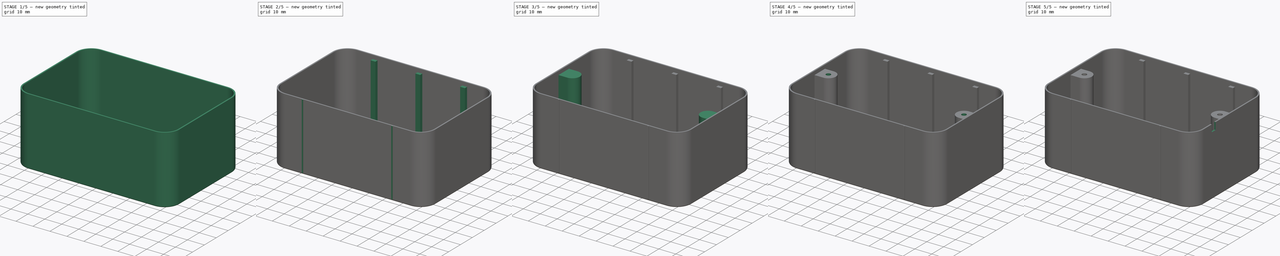
[diagram: build sequence overview — one tinted view per stage of 5, left to right]
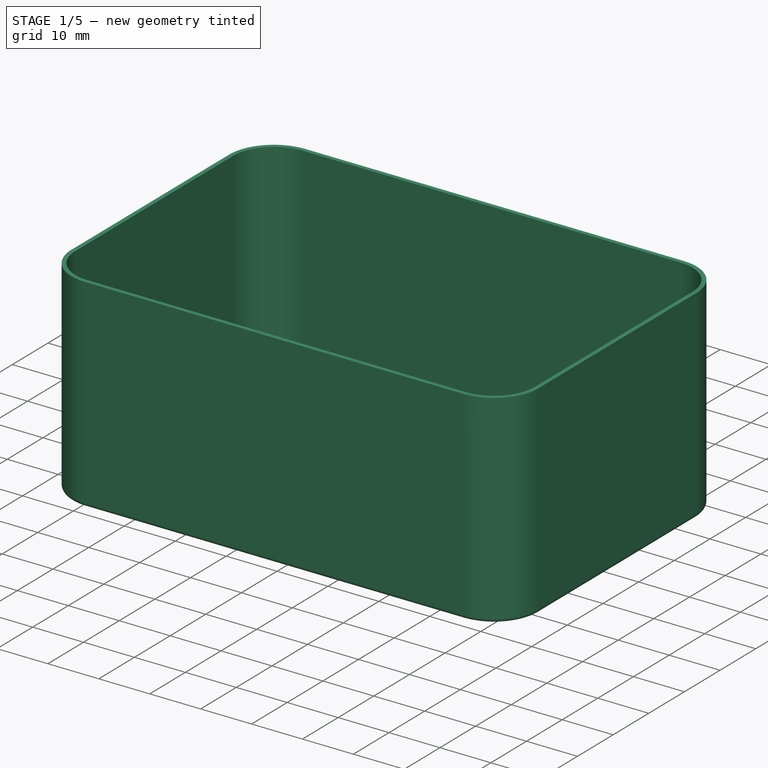
[diagram: stage 1 of 5 — iso view after this stage's code; geometry added in this stage tinted green]
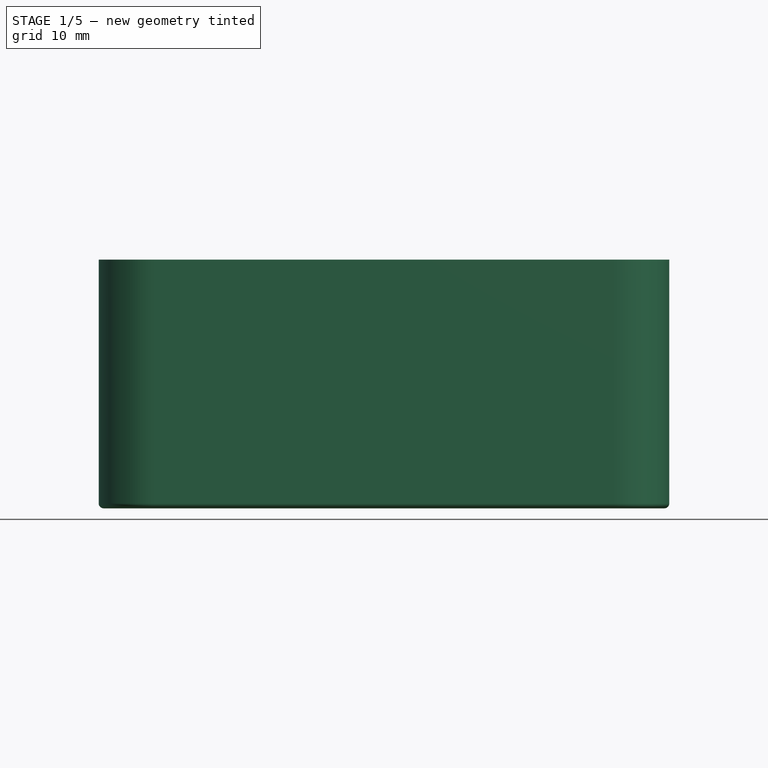
[diagram: stage 1 of 5 — front view after this stage's code; geometry added in this stage tinted green]
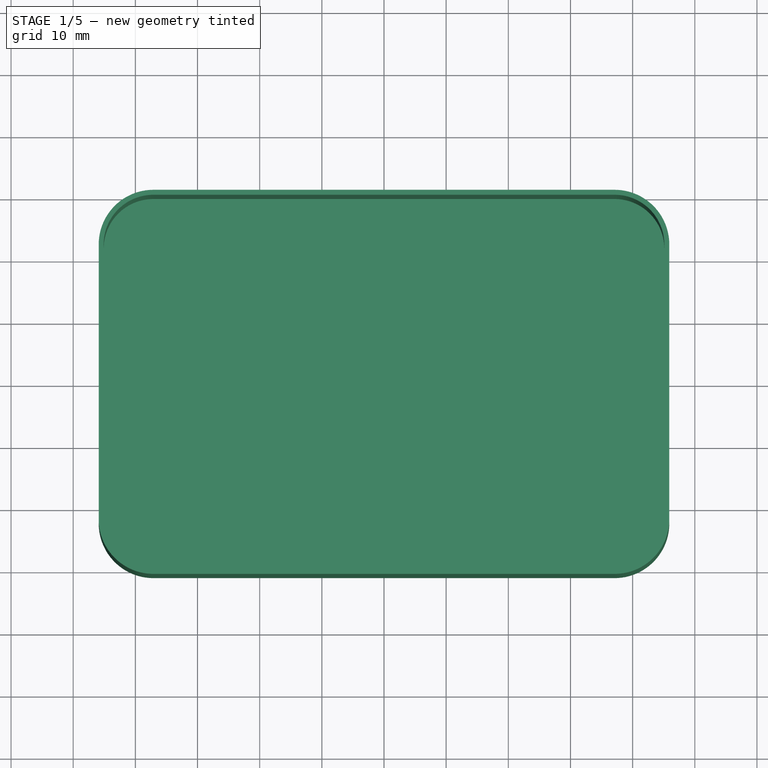
[diagram: stage 1 of 5 — top view after this stage's code; geometry added in this stage tinted green]
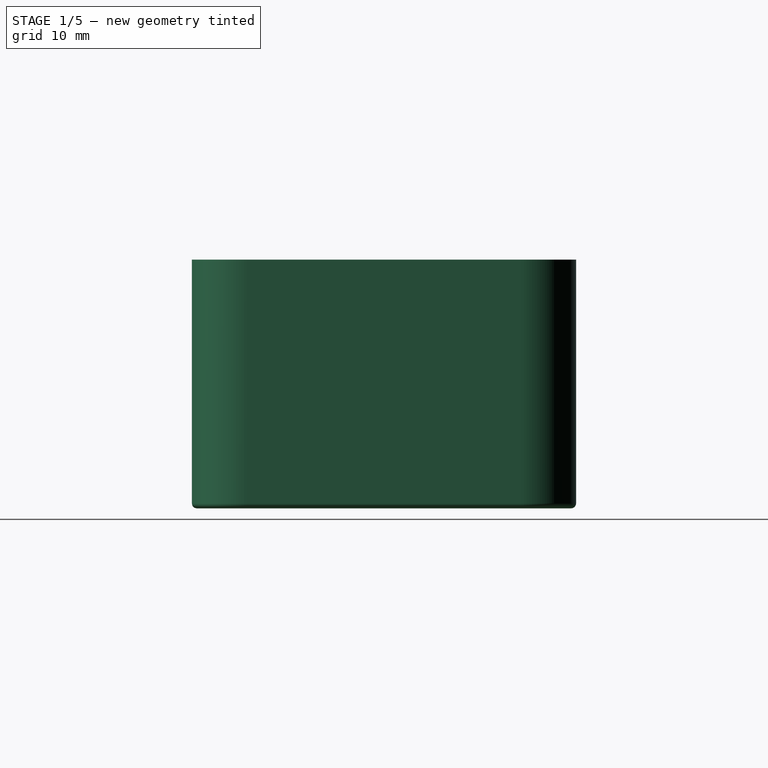
[diagram: stage 1 of 5 — right view after this stage's code; geometry added in this stage tinted green]
FCSTD DOCUMENT  (FreeCAD 0.16R6706 (Git))
Label: Untitled
License: CreativeCommons Attribution-ShareAlike
LicenseURL: http://creativecommons.org/licenses/by-sa/4.0/
objects: Sketcher::SketchObject×10, PartDesign::Pad×4, Part::MultiFuse×4, PartDesign::Pocket×4, Part::MultiCommon×4, Part::Chamfer×2, Part::Loft×1, Part::Thickness×1
note: 38 computed .brp shape members not serialized (recipe doc carries the construction recipe); baked Part::Feature solids carry a one-line shape summary decoded from their .brp

FEATURE [Sketcher::SketchObject] Sketch
  Placement = pos=(0,0,0.8) rot=(0,0,1;0rad)
  sketch-geometry (8):
    g0: LineSegment StartX=-37.1 StartY=30.1 StartZ=0 EndX=37.1 EndY=30.1 EndZ=0
    g1: LineSegment StartX=45.1 StartY=22.1 StartZ=0 EndX=45.1 EndY=-22.1 EndZ=0
    g2: LineSegment StartX=37.1 StartY=-30.1 StartZ=0 EndX=-37.1 EndY=-30.1 EndZ=0
    g3: LineSegment StartX=-45.1 StartY=-22.1 StartZ=0 EndX=-45.1 EndY=22.1 EndZ=0
    g4: ArcOfCircle CenterX=-37.1 CenterY=22.1 CenterZ=0 NormalX=0 NormalY=0 NormalZ=1 Radius=8 StartAngle=1.5708 EndAngle=3.14159
    g5: ArcOfCircle CenterX=37.1 CenterY=22.1 CenterZ=0 NormalX=0 NormalY=0 NormalZ=1 Radius=8 StartAngle=0 EndAngle=1.5708
    g6: ArcOfCircle CenterX=37.1 CenterY=-22.1 CenterZ=0 NormalX=0 NormalY=0 NormalZ=1 Radius=8 StartAngle=4.71239 EndAngle=6.28319
    g7: ArcOfCircle CenterX=-37.1 CenterY=-22.1 CenterZ=0 NormalX=0 NormalY=0 NormalZ=1 Radius=8 StartAngle=3.14159 EndAngle=4.71239
  constraints (19):
    c: Horizontal(g0)
    c: Horizontal(g2)
    c: Vertical(g1)
    c: Vertical(g3)
    c: Tangent(g3,g4) = 1.5708
    c: Tangent(g0,g4) = 1.5708
    c: Tangent(g0,g5) = 1.5708
    c: Tangent(g1,g5) = 1.5708
    c: Tangent(g1,g6) = 1.5708
    c: Tangent(g2,g6) = 1.5708
    c: Tangent(g2,g7) = 1.5708
    c: Tangent(g3,g7) = 1.5708
    c: Equal(g4,g5)
    c: Equal(g5,g6)
    c: Equal(g6,g7)
    c: Radius(g5) = 8
    c: Symmetric(g4,g6,g-1)
    c: DistanceX(g3,g1) = 90.2
    c: DistanceY(g2,g0) = 60.2
FEATURE [Sketcher::SketchObject] Sketch001  label="SketchTop"
  Placement = pos=(0,0,40) rot=(0,0,1;0rad)
  sketch-geometry (8):
    g0: LineSegment StartX=-37.1 StartY=30.1 StartZ=0 EndX=37.1 EndY=30.1 EndZ=0
    g1: LineSegment StartX=45.1 StartY=22.1 StartZ=0 EndX=45.1 EndY=-22.1 EndZ=0
    g2: LineSegment StartX=37.1 StartY=-30.1 StartZ=0 EndX=-37.1 EndY=-30.1 EndZ=0
    g3: LineSegment StartX=-45.1 StartY=-22.1 StartZ=0 EndX=-45.1 EndY=22.1 EndZ=0
    g4: ArcOfCircle CenterX=-37.1 CenterY=22.1 CenterZ=0 NormalX=0 NormalY=0 NormalZ=1 Radius=8 StartAngle=1.5708 EndAngle=3.14159
    g5: ArcOfCircle CenterX=37.1 CenterY=22.1 CenterZ=0 NormalX=0 NormalY=0 NormalZ=1 Radius=8 StartAngle=0 EndAngle=1.5708
    g6: ArcOfCircle CenterX=37.1 CenterY=-22.1 CenterZ=0 NormalX=0 NormalY=0 NormalZ=1 Radius=8 StartAngle=4.71239 EndAngle=6.28319
    g7: ArcOfCircle CenterX=-37.1 CenterY=-22.1 CenterZ=0 NormalX=0 NormalY=0 NormalZ=1 Radius=8 StartAngle=3.14159 EndAngle=4.71239
  constraints (19):
    c: Horizontal(g0)
    c: Horizontal(g2)
    c: Vertical(g1)
    c: Vertical(g3)
    c: Tangent(g3,g4) = 1.5708
    c: Tangent(g0,g4) = 1.5708
    c: Tangent(g0,g5) = 1.5708
    c: Tangent(g1,g5) = 1.5708
    c: Tangent(g1,g6) = 1.5708
    c: Tangent(g2,g6) = 1.5708
    c: Tangent(g2,g7) = 1.5708
    c: Tangent(g3,g7) = 1.5708
    c: Equal(g4,g5)
    c: Equal(g5,g6)
    c: Equal(g6,g7)
    c: Radius(g5) = 8
    c: Symmetric(g4,g6,g-1)
    c: DistanceX(g3,g1) = 90.2
    c: DistanceY(g2,g0) = 60.2
FEATURE [Part::Loft] Loft
  Closed = false
  Ruled = false
  Sections = -> [Sketch,Sketch001]
  Solid = true
FEATURE [Part::Thickness] Thickness
  Faces = -> Loft [Face10]
  Intersection = false
  Join = 0
  Mode = 0
  SelfIntersection = false
  Value = 0.8
FEATURE [Sketcher::SketchObject] Sketch002
  Placement = pos=(0,-30.1,0) rot=(0,0.707107,0.707107;3.14159rad)
  Support = -> Thickness [Face7]
  sketch-geometry (12):
    g0: LineSegment StartX=-27.8 StartY=37.8 StartZ=0 EndX=-25 EndY=37.8 EndZ=0
    g1: LineSegment StartX=-25 StartY=37.8 StartZ=0 EndX=-25 EndY=0 EndZ=0
    g2: LineSegment StartX=-25 StartY=0 StartZ=0 EndX=-27.8 EndY=0 EndZ=0
    g3: LineSegment StartX=-27.8 StartY=0 StartZ=0 EndX=-27.8 EndY=37.8 EndZ=0
    g4: LineSegment StartX=-1.4 StartY=37.8 StartZ=0 EndX=1.4 EndY=37.8 EndZ=0
    g5: LineSegment StartX=1.4 StartY=37.8 StartZ=0 EndX=1.4 EndY=0 EndZ=0
    g6: LineSegment StartX=1.4 StartY=0 StartZ=0 EndX=-1.4 EndY=0 EndZ=0
    g7: LineSegment StartX=-1.4 StartY=0 StartZ=0 EndX=-1.4 EndY=37.8 EndZ=0
    g8: LineSegment StartX=25 StartY=37.8 StartZ=0 EndX=27.8 EndY=37.8 EndZ=0
    g9: LineSegment StartX=27.8 StartY=37.8 StartZ=0 EndX=27.8 EndY=0 EndZ=0
    g10: LineSegment StartX=27.8 StartY=0 StartZ=0 EndX=25 EndY=0 EndZ=0
    g11: LineSegment StartX=25 StartY=0 StartZ=0 EndX=25 EndY=37.8 EndZ=0
  constraints (36):
    c: Coincident(g0,g1)
    c: Coincident(g1,g2)
    c: Coincident(g2,g3)
    c: Coincident(g3,g0)
    c: Horizontal(g0)
    c: Horizontal(g2)
    c: Vertical(g1)
    c: Vertical(g3)
    c: PointOnObject(g1,g-1)
    c: Coincident(g4,g5)
    c: Coincident(g5,g6)
    c: Coincident(g6,g7)
    c: Coincident(g7,g4)
    c: Horizontal(g4)
    c: Horizontal(g6)
    c: Vertical(g5)
    c: Vertical(g7)
    c: PointOnObject(g5,g-1)
    c: Coincident(g8,g9)
    c: Coincident(g9,g10)
    c: Coincident(g10,g11)
    c: Coincident(g11,g8)
    c: Horizontal(g8)
    c: Horizontal(g10)
    c: Vertical(g9)
    c: Vertical(g11)
    c: PointOnObject(g9,g-1)
    c: Equal(g0,g4)
    c: Equal(g4,g8)
    c: Equal(g1,g5)
    c: Equal(g5,g9)
    c: DistanceX(g0,g8) = 50
    c: Symmetric(g0,g8,g-2)
    c: DistanceY(g9,g9) = 37.8
    c: Symmetric(g4,g4,g-2)
    c: DistanceX(g8,g8) = 2.8
FEATURE [PartDesign::Pad] Pad
  Length = 1.8
  Length2 = 100
  Sketch = -> Sketch002
  Type = 0
FEATURE [Part::MultiFuse] Fusion
  Shapes = -> [Pad,Thickness]
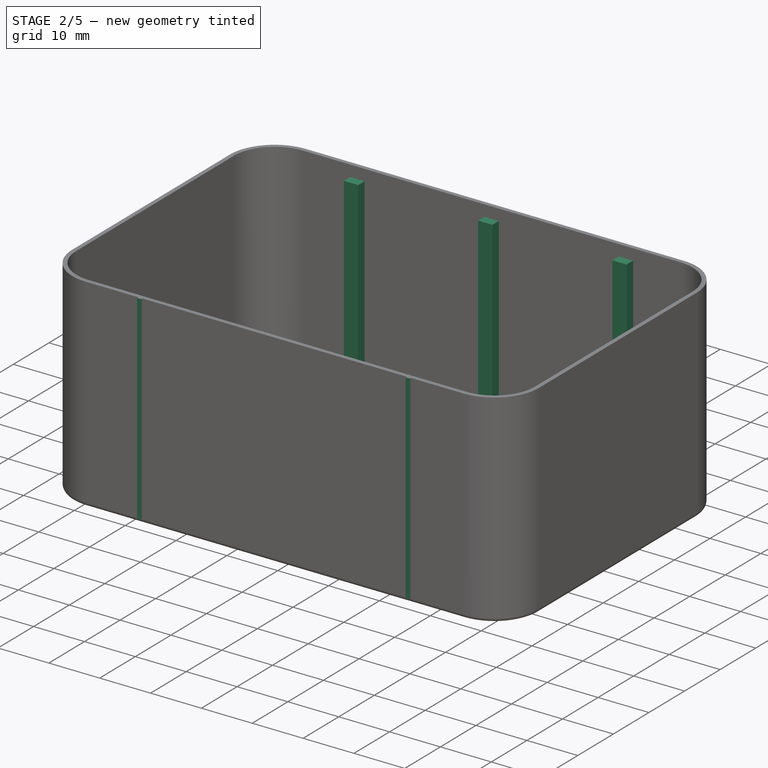
[diagram: stage 2 of 5 — iso view after this stage's code; geometry added in this stage tinted green]
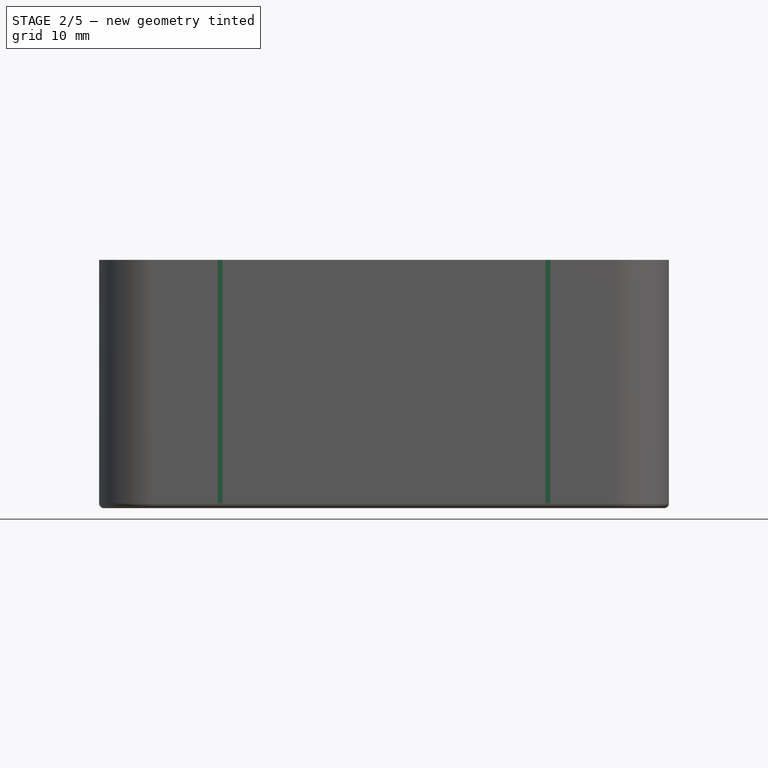
[diagram: stage 2 of 5 — front view after this stage's code; geometry added in this stage tinted green]
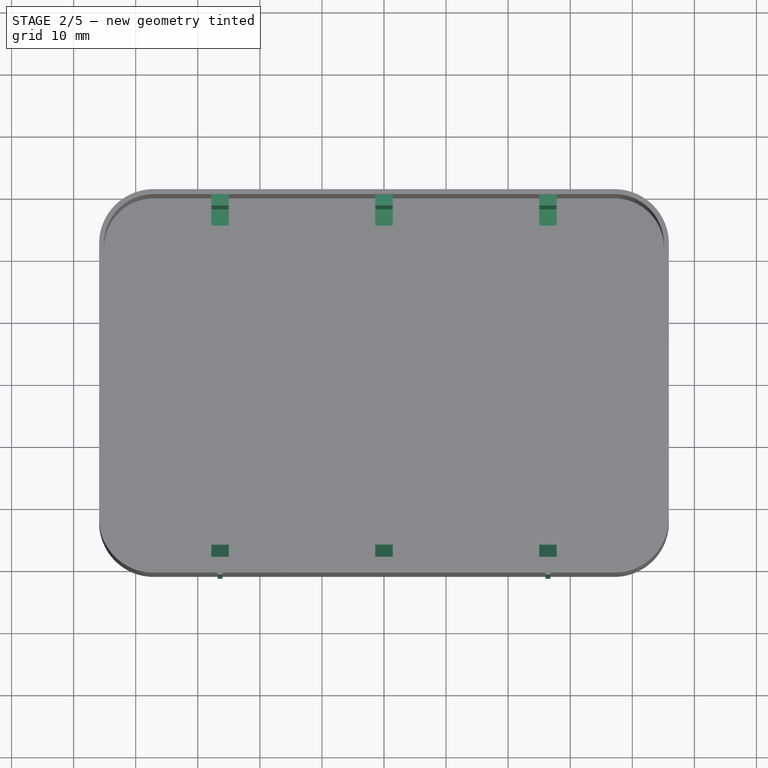
[diagram: stage 2 of 5 — top view after this stage's code; geometry added in this stage tinted green]
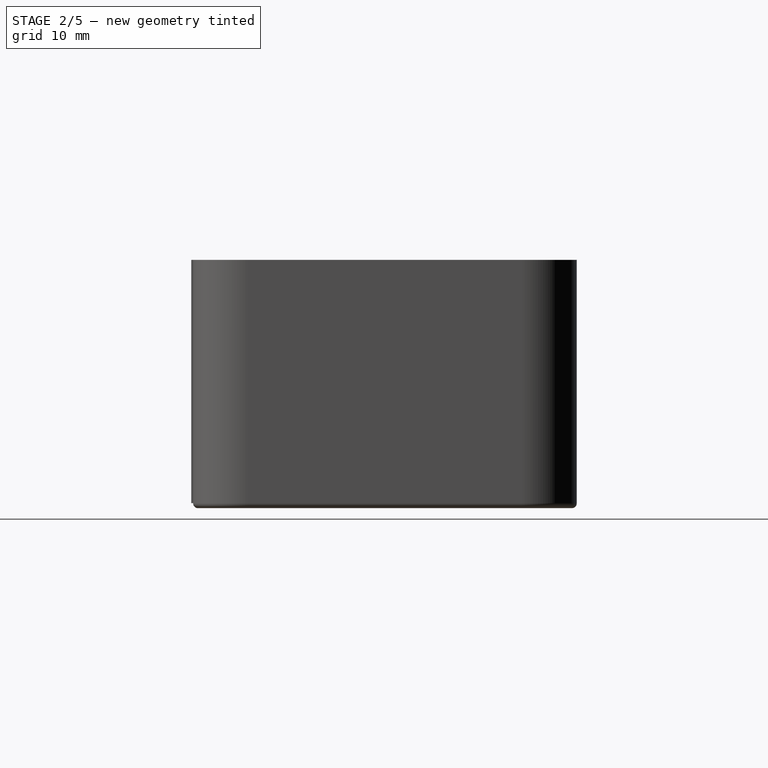
[diagram: stage 2 of 5 — right view after this stage's code; geometry added in this stage tinted green]
FEATURE [Sketcher::SketchObject] Sketch003
  Placement = pos=(0,30.1,0) rot=(1,0,0;1.5708rad)
  Support = -> Fusion [Face7]
  sketch-geometry (12):
    g0: LineSegment StartX=-27.8 StartY=37.8 StartZ=0 EndX=-25 EndY=37.8 EndZ=0
    g1: LineSegment StartX=-25 StartY=37.8 StartZ=0 EndX=-25 EndY=0 EndZ=0
    g2: LineSegment StartX=-25 StartY=0 StartZ=0 EndX=-27.8 EndY=0 EndZ=0
    g3: LineSegment StartX=-27.8 StartY=0 StartZ=0 EndX=-27.8 EndY=37.8 EndZ=0
    g4: LineSegment StartX=-1.4 StartY=37.8 StartZ=0 EndX=1.4 EndY=37.8 EndZ=0
    g5: LineSegment StartX=1.4 StartY=37.8 StartZ=0 EndX=1.4 EndY=0 EndZ=0
    g6: LineSegment StartX=1.4 StartY=0 StartZ=0 EndX=-1.4 EndY=0 EndZ=0
    g7: LineSegment StartX=-1.4 StartY=0 StartZ=0 EndX=-1.4 EndY=37.8 EndZ=0
    g8: LineSegment StartX=25 StartY=37.8 StartZ=0 EndX=27.8 EndY=37.8 EndZ=0
    g9: LineSegment StartX=27.8 StartY=37.8 StartZ=0 EndX=27.8 EndY=0 EndZ=0
    g10: LineSegment StartX=27.8 StartY=0 StartZ=0 EndX=25 EndY=0 EndZ=0
    g11: LineSegment StartX=25 StartY=0 StartZ=0 EndX=25 EndY=37.8 EndZ=0
  constraints (36):
    c: Coincident(g0,g1)
    c: Coincident(g1,g2)
    c: Coincident(g2,g3)
    c: Coincident(g3,g0)
    c: Horizontal(g0)
    c: Horizontal(g2)
    c: Vertical(g1)
    c: Vertical(g3)
    c: PointOnObject(g1,g-1)
    c: Coincident(g4,g5)
    c: Coincident(g5,g6)
    c: Coincident(g6,g7)
    c: Coincident(g7,g4)
    c: Horizontal(g4)
    c: Horizontal(g6)
    c: Vertical(g5)
    c: Vertical(g7)
    c: PointOnObject(g5,g-1)
    c: Coincident(g8,g9)
    c: Coincident(g9,g10)
    c: Coincident(g10,g11)
    c: Coincident(g11,g8)
    c: Horizontal(g8)
    c: Horizontal(g10)
    c: Vertical(g9)
    c: Vertical(g11)
    c: PointOnObject(g9,g-1)
    c: Equal(g0,g4)
    c: Equal(g4,g8)
    c: Equal(g1,g5)
    c: Equal(g5,g9)
    c: Symmetric(g0,g8,g-2)
    c: DistanceX(g0,g8) = 50
    c: DistanceY(g9,g9) = 37.8
    c: Symmetric(g4,g4,g-2)
    c: DistanceX(g8,g8) = 2.8
FEATURE [PartDesign::Pad] Pad001
  Length = 1.8
  Length2 = 100
  Sketch = -> Sketch003
  Type = 0
FEATURE [Part::MultiFuse] Fusion001
  Shapes = -> [Pad001,Fusion]
FEATURE [Part::Chamfer] Chamfer
  Base = -> Fusion001
  Edges = 6 edges r=2.6: [Edge11,Edge12,Edge19,Edge20,Edge27,Edge28]
FEATURE [Sketcher::SketchObject] Sketch004
  Placement = pos=(0,-30.9,0) rot=(1,0,0;1.5708rad)
  Support = -> Chamfer [Face48]
  sketch-geometry (8):
    g0: LineSegment StartX=-26.8 StartY=40 StartZ=0 EndX=-26 EndY=40 EndZ=0
    g1: LineSegment StartX=-26 StartY=40 StartZ=0 EndX=-26 EndY=0.8 EndZ=0
    g2: LineSegment StartX=-26 StartY=0.8 StartZ=0 EndX=-26.8 EndY=0.8 EndZ=0
    g3: LineSegment StartX=-26.8 StartY=0.8 StartZ=0 EndX=-26.8 EndY=40 EndZ=0
    g4: LineSegment StartX=26 StartY=40 StartZ=0 EndX=26.8 EndY=40 EndZ=0
    g5: LineSegment StartX=26.8 StartY=40 StartZ=0 EndX=26.8 EndY=0.8 EndZ=0
    g6: LineSegment StartX=26.8 StartY=0.8 StartZ=0 EndX=26 EndY=0.8 EndZ=0
    g7: LineSegment StartX=26 StartY=0.8 StartZ=0 EndX=26 EndY=40 EndZ=0
  constraints (23):
    c: Coincident(g0,g1)
    c: Coincident(g1,g2)
    c: Coincident(g2,g3)
    c: Coincident(g3,g0)
    c: Horizontal(g0)
    c: Horizontal(g2)
    c: Vertical(g1)
    c: Vertical(g3)
    c: Coincident(g4,g5)
    c: Coincident(g5,g6)
    c: Coincident(g6,g7)
    c: Coincident(g7,g4)
    c: Horizontal(g4)
    c: Horizontal(g6)
    c: Vertical(g5)
    c: Vertical(g7)
    c: Symmetric(g0,g4,g-2)
    c: DistanceX(g0,g4) = 52
    c: Equal(g0,g4)
    c: Equal(g1,g5)
    c: DistanceY(g5,g5) = 39.2
    c: DistanceX(g4,g4) = 0.8
    c: DistanceY(g-1,g5) = 0.8
FEATURE [PartDesign::Pad] Pad002
  Length = 0.3
  Length2 = 100
  Sketch = -> Sketch004
  Type = 0
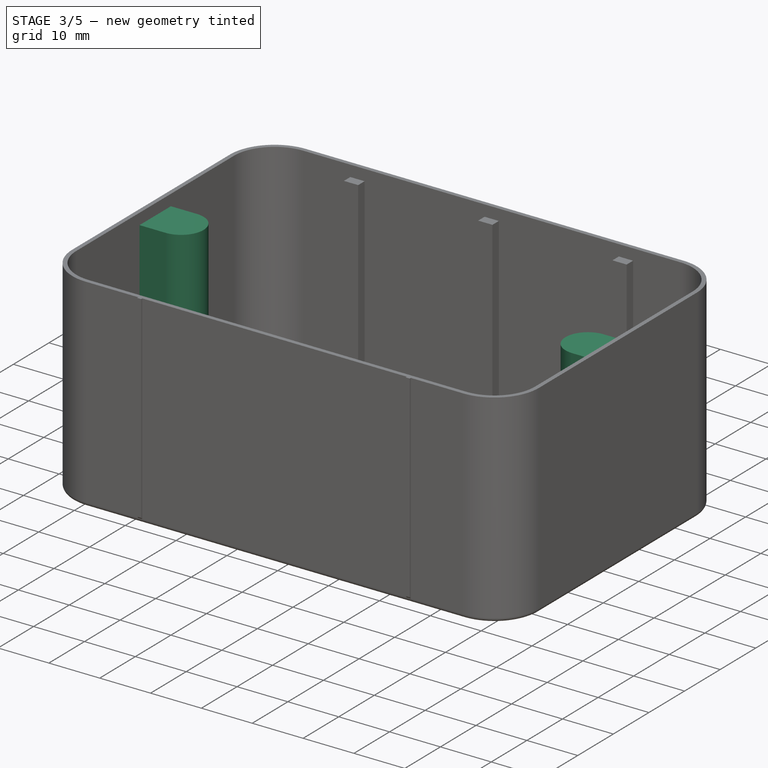
[diagram: stage 3 of 5 — iso view after this stage's code; geometry added in this stage tinted green]
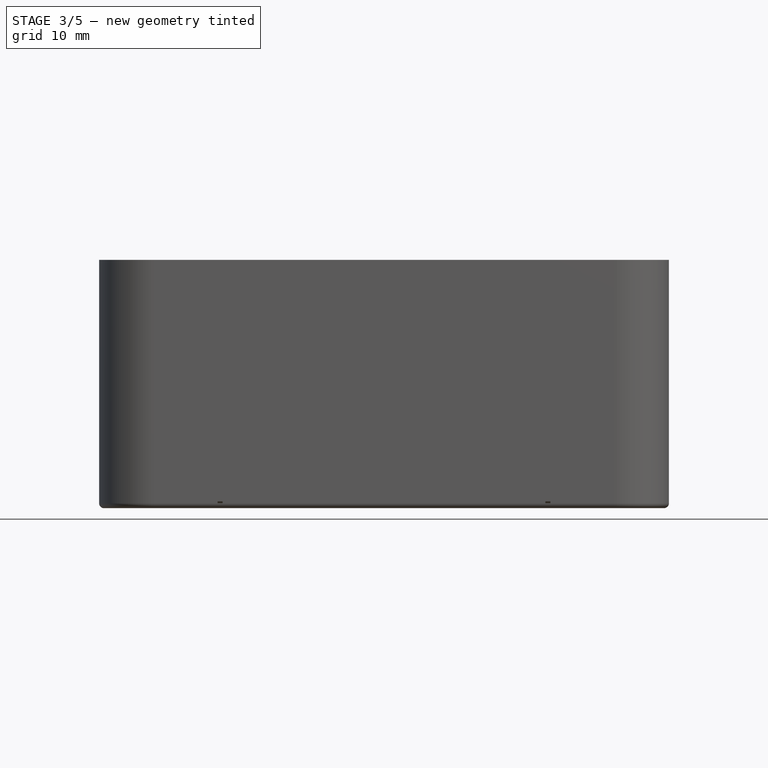
[diagram: stage 3 of 5 — front view after this stage's code; geometry added in this stage tinted green]
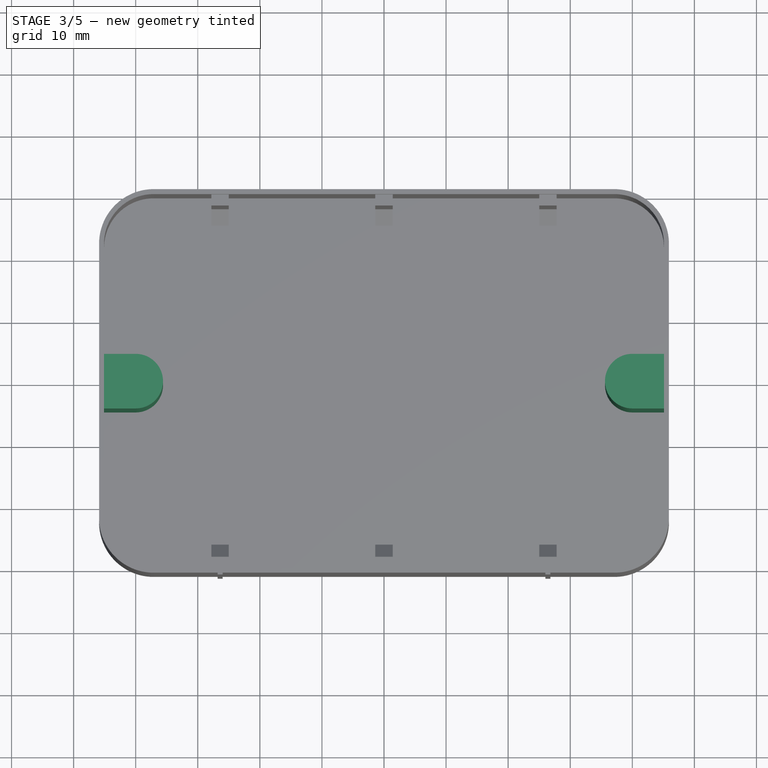
[diagram: stage 3 of 5 — top view after this stage's code; geometry added in this stage tinted green]
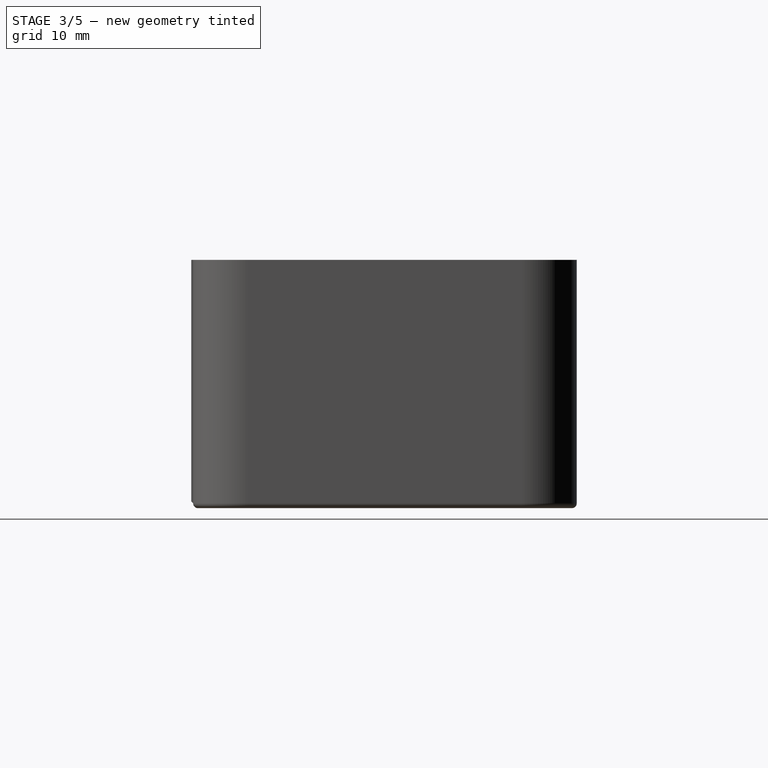
[diagram: stage 3 of 5 — right view after this stage's code; geometry added in this stage tinted green]
FEATURE [Part::MultiFuse] Fusion002
  Shapes = -> [Pad002,Chamfer]
FEATURE [Part::Chamfer] Chamfer001
  Base = -> Fusion002
  Edges = 2 edges r=0.29: [Edge13,Edge52]
FEATURE [Sketcher::SketchObject] Sketch005
  ExternalGeometry = -> [Chamfer001]
  Placement = pos=(0,0,0.8) rot=(0,0,1;0rad)
  Support = -> Chamfer001 [Face38]
  sketch-geometry (8):
    g0: LineSegment StartX=-40 StartY=4.4 StartZ=0 EndX=-45.1 EndY=4.4 EndZ=0
    g1: LineSegment StartX=-40 StartY=-4.4 StartZ=0 EndX=-45.1 EndY=-4.4 EndZ=0
    g2: LineSegment StartX=-45.1 StartY=4.4 StartZ=0 EndX=-45.1 EndY=-4.4 EndZ=0
    g3: LineSegment StartX=40 StartY=4.4 StartZ=0 EndX=45.1 EndY=4.4 EndZ=0
    g4: LineSegment StartX=40 StartY=-4.4 StartZ=0 EndX=45.1 EndY=-4.4 EndZ=0
    g5: LineSegment StartX=45.1 StartY=4.4 StartZ=0 EndX=45.1 EndY=-4.4 EndZ=0
    g6: ArcOfCircle CenterX=40 CenterY=0 CenterZ=0 NormalX=0 NormalY=0 NormalZ=1 Radius=4.4 StartAngle=1.5708 EndAngle=4.71239
    g7: ArcOfCircle CenterX=-40 CenterY=0 CenterZ=0 NormalX=0 NormalY=0 NormalZ=1 Radius=4.4 StartAngle=4.71239 EndAngle=7.85398
  constraints (26):
    c: PointOnObject(g0,g-4)
    c: Horizontal(g0)
    c: PointOnObject(g1,g-4)
    c: Horizontal(g1)
    c: Coincident(g2,g0)
    c: Coincident(g2,g1)
    c: PointOnObject(g3,g-3)
    c: Horizontal(g3)
    c: PointOnObject(g4,g-3)
    c: Horizontal(g4)
    c: Coincident(g5,g3)
    c: Coincident(g5,g4)
    c: PointOnObject(g6,g-1)
    c: Coincident(g6,g3)
    c: Coincident(g6,g4)
    c: PointOnObject(g7,g-1)
    c: Coincident(g7,g0)
    c: Coincident(g7,g1)
    c: Equal(g7,g6)
    c: Symmetric(g7,g6,g-2)
    c: Radius(g6) = 4.4
    c: Tangent(g0,g7)
    c: Tangent(g1,g7)
    c: Tangent(g6,g3)
    c: Tangent(g6,g4)
    c: DistanceX(g-1,g6) = 40
FEATURE [PartDesign::Pad] Pad003
  Length = 37
  Length2 = 100
  Sketch = -> Sketch005
  Type = 0
FEATURE [Part::MultiFuse] Fusion003
  Shapes = -> [Pad003,Chamfer001]
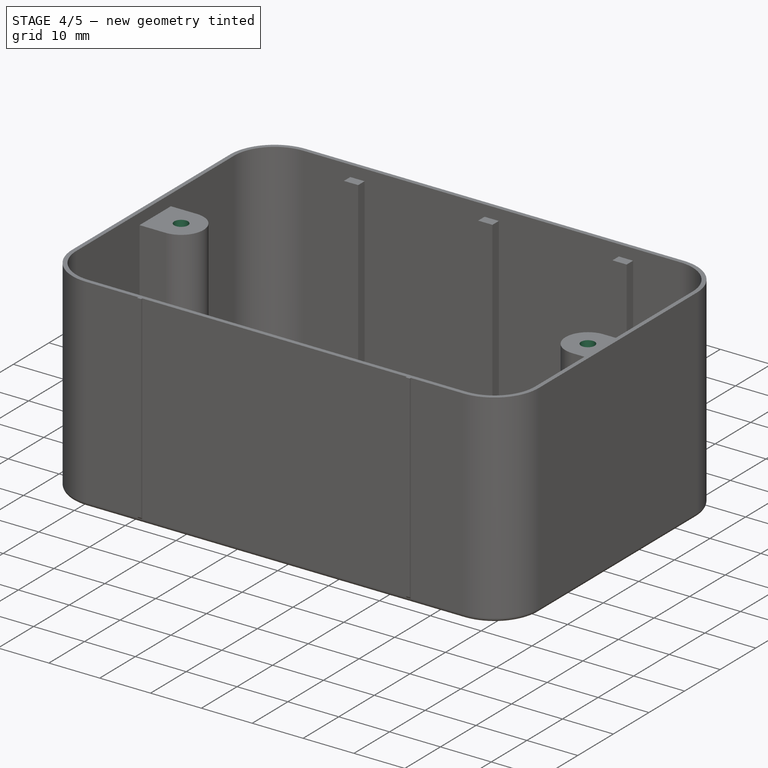
[diagram: stage 4 of 5 — iso view after this stage's code; geometry added in this stage tinted green]
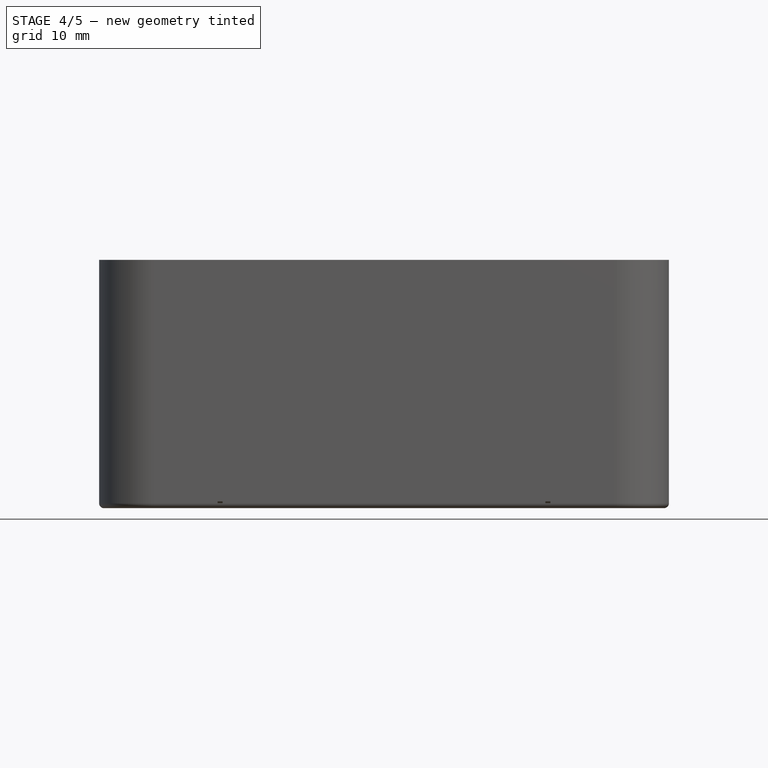
[diagram: stage 4 of 5 — front view after this stage's code; geometry added in this stage tinted green]
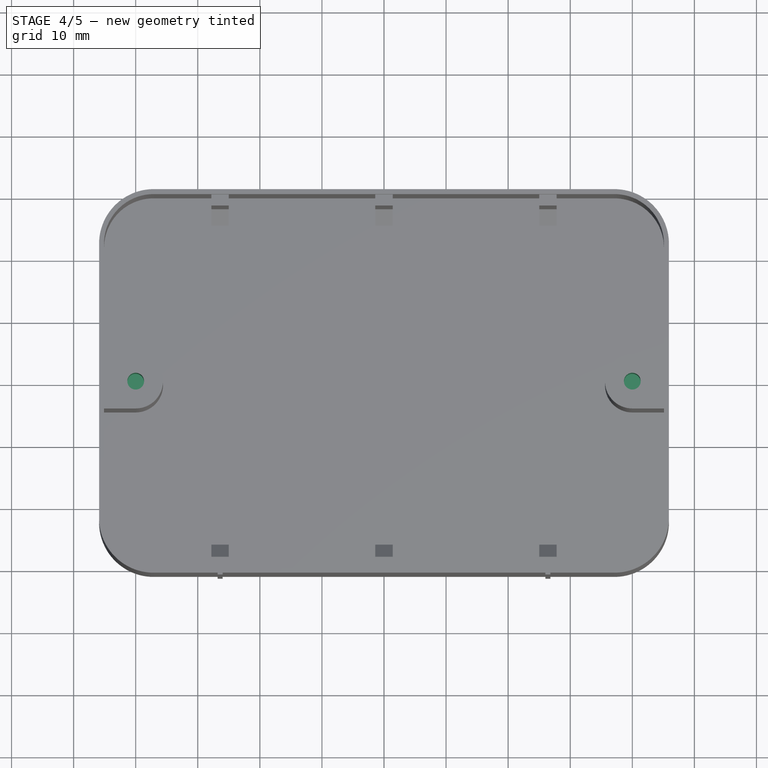
[diagram: stage 4 of 5 — top view after this stage's code; geometry added in this stage tinted green]
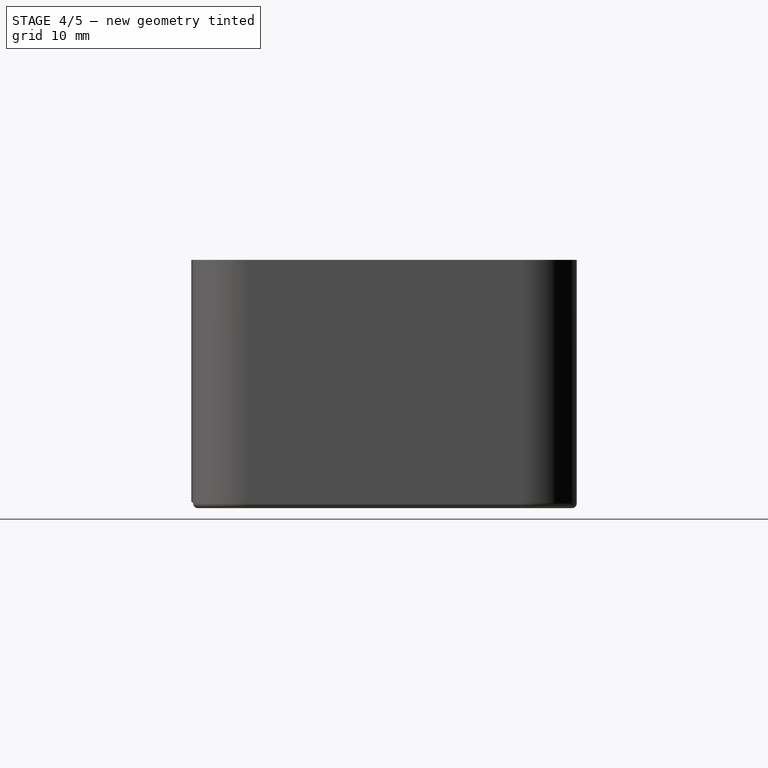
[diagram: stage 4 of 5 — right view after this stage's code; geometry added in this stage tinted green]
FEATURE [Sketcher::SketchObject] Sketch006
  Placement = pos=(0,0,37.8) rot=(0,0,1;0rad)
  Support = -> Fusion003 [Face52]
  sketch-geometry (1):
    g0: Circle CenterX=40 CenterY=0 CenterZ=0 NormalX=0 NormalY=0 NormalZ=1 Radius=1.35
  constraints (3):
    c: PointOnObject(g0,g-1)
    c: DistanceX(g-1,g0) = 40
    c: Radius(g0) = 1.35
FEATURE [PartDesign::Pocket] Pocket
  Length = 10
  Sketch = -> Sketch006
  Type = 0
FEATURE [Part::MultiCommon] Common
  Shapes = -> [Fusion003,Pocket]
FEATURE [Sketcher::SketchObject] Sketch007
  Placement = pos=(0,0,37.8) rot=(0,0,1;0rad)
  Support = -> Common [Face49]
  sketch-geometry (1):
    g0: Circle CenterX=-40 CenterY=0 CenterZ=0 NormalX=0 NormalY=0 NormalZ=1 Radius=1.35
  constraints (3):
    c: PointOnObject(g0,g-1)
    c: DistanceX(g0,g-1) = 40
    c: Radius(g0) = 1.35
FEATURE [PartDesign::Pocket] Pocket001
  Length = 10
  Sketch = -> Sketch007
  Type = 0
FEATURE [Part::MultiCommon] Common001
  Shapes = -> [Common,Pocket001]
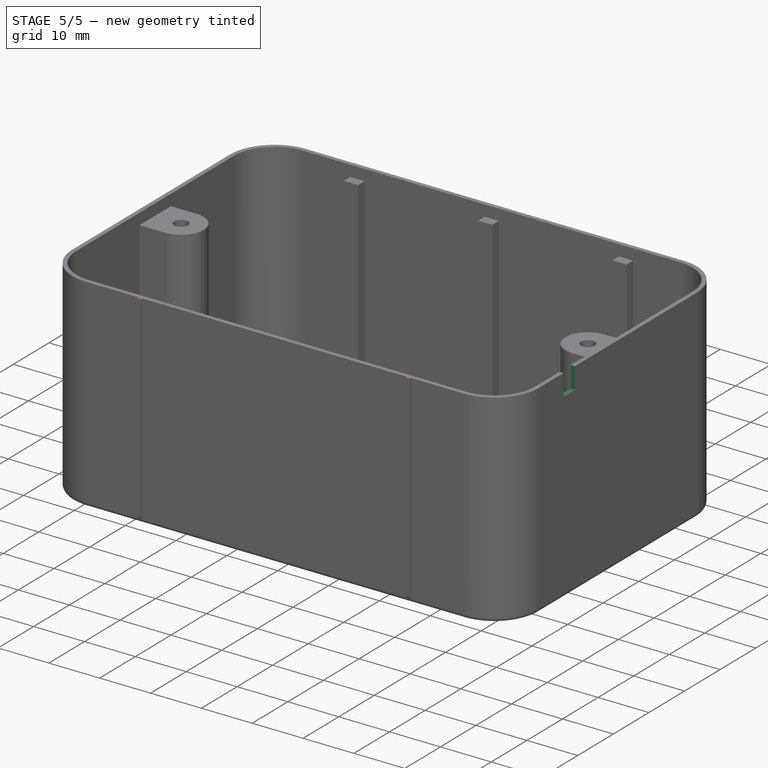
[diagram: stage 5 of 5 — iso view after this stage's code; geometry added in this stage tinted green]
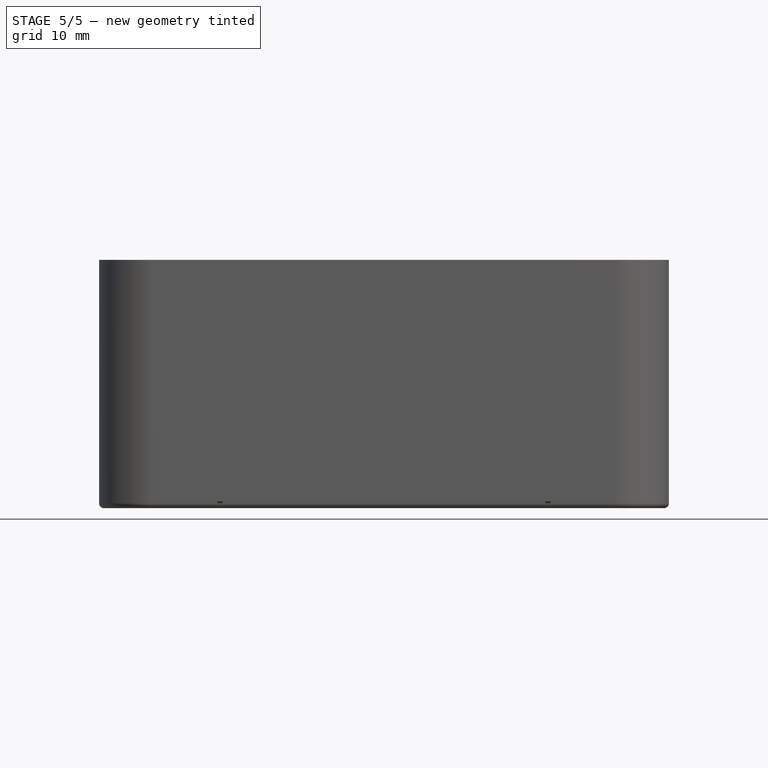
[diagram: stage 5 of 5 — front view after this stage's code; geometry added in this stage tinted green]
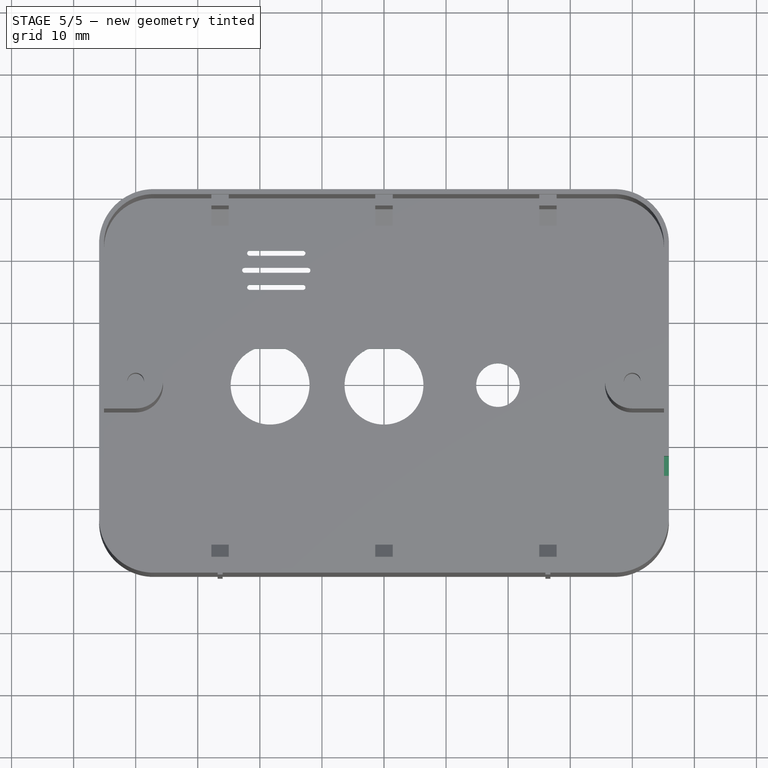
[diagram: stage 5 of 5 — top view after this stage's code; geometry added in this stage tinted green]
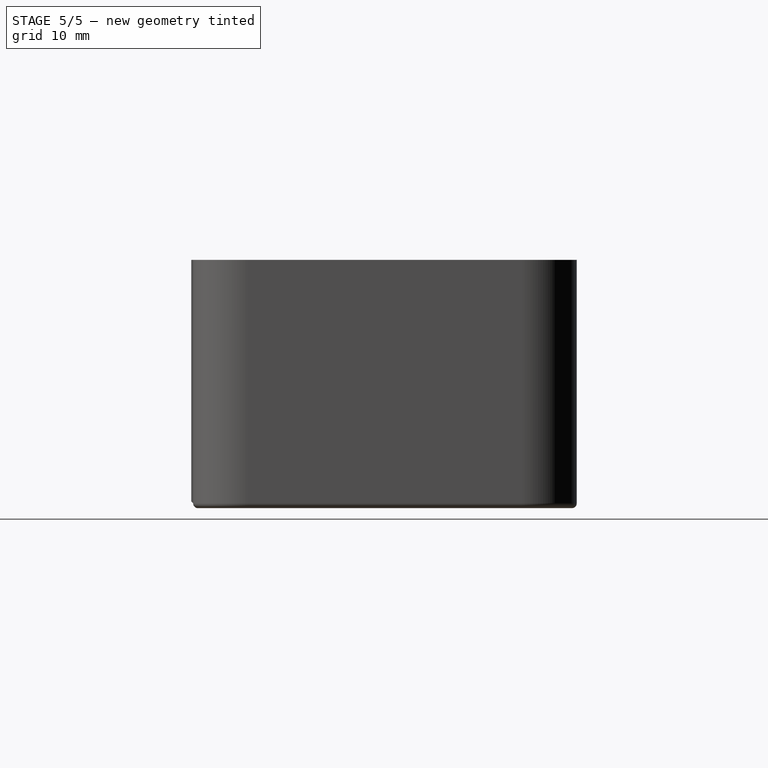
[diagram: stage 5 of 5 — right view after this stage's code; geometry added in this stage tinted green]
FEATURE [Sketcher::SketchObject] Sketch008
  Placement = pos=(0,0,0.8) rot=(0,0,1;0rad)
  Support = -> Common001 [Face38]
  sketch-geometry (21):
    g0: ArcOfCircle CenterX=-18.35 CenterY=0 CenterZ=0 NormalX=0 NormalY=0 NormalZ=1 Radius=6.35 StartAngle=1.97545 EndAngle=7.44933
    g1: ArcOfCircle CenterX=0 CenterY=0 CenterZ=0 NormalX=0 NormalY=0 NormalZ=1 Radius=6.35 StartAngle=1.97545 EndAngle=7.44933
    g2: Circle CenterX=18.35 CenterY=0 CenterZ=0 NormalX=0 NormalY=0 NormalZ=1 Radius=3.5
    g3: Circle [constr] CenterX=-17.35 CenterY=18.5 CenterZ=0 NormalX=0 NormalY=0 NormalZ=1 Radius=5.5
    g4: LineSegment StartX=-20.85 StartY=5.83717 StartZ=0 EndX=-15.85 EndY=5.83717 EndZ=0
    g5: LineSegment StartX=-2.5 StartY=5.83717 StartZ=0 EndX=2.5 EndY=5.83717 EndZ=0
    g6: LineSegment [constr] StartX=-22.85 StartY=18.5 StartZ=0 EndX=-11.85 EndY=18.5 EndZ=0
    g7: LineSegment [constr] StartX=-22.1131 StartY=15.75 StartZ=0 EndX=-12.5869 EndY=15.75 EndZ=0
    g8: LineSegment [constr] StartX=-22.1131 StartY=21.25 StartZ=0 EndX=-12.5869 EndY=21.25 EndZ=0
    g9: LineSegment StartX=-21.6451 StartY=21.65 StartZ=0 EndX=-13.0549 EndY=21.65 EndZ=0
    g10: LineSegment StartX=-21.6451 StartY=20.85 StartZ=0 EndX=-13.0549 EndY=20.85 EndZ=0
    g11: ArcOfCircle CenterX=-13.0549 CenterY=21.25 CenterZ=0 NormalX=0 NormalY=0 NormalZ=1 Radius=0.4 StartAngle=4.71239 EndAngle=7.85398
    g12: ArcOfCircle CenterX=-21.6451 CenterY=21.25 CenterZ=0 NormalX=0 NormalY=0 NormalZ=1 Radius=0.4 StartAngle=1.5708 EndAngle=4.71239
    g13: LineSegment StartX=-22.45 StartY=18.9 StartZ=0 EndX=-12.25 EndY=18.9 EndZ=0
    g14: LineSegment StartX=-22.45 StartY=18.1 StartZ=0 EndX=-12.25 EndY=18.1 EndZ=0
    g15: ArcOfCircle CenterX=-12.25 CenterY=18.5 CenterZ=0 NormalX=0 NormalY=0 NormalZ=1 Radius=0.4 StartAngle=4.71239 EndAngle=7.85398
    g16: ArcOfCircle CenterX=-22.45 CenterY=18.5 CenterZ=0 NormalX=0 NormalY=0 NormalZ=1 Radius=0.4 StartAngle=1.5708 EndAngle=4.71239
    g17: LineSegment StartX=-21.6451 StartY=16.15 StartZ=0 EndX=-13.0549 EndY=16.15 EndZ=0
    g18: LineSegment StartX=-21.6451 StartY=15.35 StartZ=0 EndX=-13.0549 EndY=15.35 EndZ=0
    g19: ArcOfCircle CenterX=-13.0549 CenterY=15.75 CenterZ=0 NormalX=0 NormalY=0 NormalZ=1 Radius=0.4 StartAngle=4.71238 EndAngle=7.85399
    g20: ArcOfCircle CenterX=-21.6451 CenterY=15.75 CenterZ=0 NormalX=0 NormalY=0 NormalZ=1 Radius=0.4 StartAngle=1.57079 EndAngle=4.7124
  constraints (73):
    c: PointOnObject(g0,g-1)
    c: Coincident(g1,g-1)
    c: PointOnObject(g2,g-1)
    c: Radius(g2) = 3.5
    c: Equal(g0,g1)
    c: Radius(g1) = 6.35
    c: DistanceX(g-1,g2) = 18.35
    c: DistanceX(g0,g-1) = 18.35
    c: DistanceX(g3,g-1) = 17.35
    c: DistanceY(g-1,g3) = 18.5
    c: Radius(g3) = 5.5
    c: Horizontal(g4)
    c: Horizontal(g5)
    c: Equal(g4,g5)
    c: Coincident(g1,g5)
    c: Coincident(g1,g5)
    c: Coincident(g0,g4)
    c: Coincident(g0,g4)
    c: DistanceX(g5,g5) = 5
    c: PointOnObject(g6,g3)
    c: PointOnObject(g6,g3)
    c: Horizontal(g6)
    c: DistanceY(g-1,g6) = 18.5
    c: PointOnObject(g7,g3)
    c: PointOnObject(g7,g3)
    c: Horizontal(g7)
    c: DistanceY(g-1,g7) = 15.75
    c: PointOnObject(g8,g3)
    c: PointOnObject(g8,g3)
    c: Horizontal(g8)
    c: DistanceY(g-1,g8) = 21.25
    c: Horizontal(g9)
    c: Horizontal(g10)
    c: Equal(g9,g10)
    c: PointOnObject(g11,g8)
    c: Coincident(g11,g9)
    c: Coincident(g11,g10)
    c: PointOnObject(g12,g8)
    c: Coincident(g12,g9)
    c: Coincident(g12,g10)
    c: Tangent(g12,g9)
    c: Tangent(g10,g11)
    c: Tangent(g11,g3)
    c: Tangent(g12,g3)
    c: DistanceY(g10,g9) = 0.8
    c: Horizontal(g13)
    c: Horizontal(g14)
    c: Equal(g13,g14)
    c: PointOnObject(g15,g6)
    c: Coincident(g15,g13)
    c: Coincident(g15,g14)
    c: PointOnObject(g16,g6)
    c: Coincident(g16,g13)
    c: Coincident(g16,g14)
    c: Tangent(g16,g13)
    c: Tangent(g15,g14)
    c: Tangent(g15,g3)
    c: Tangent(g16,g3)
    c: DistanceY(g14,g13) = 0.8
    c: Horizontal(g17)
    c: Horizontal(g18)
    c: Equal(g17,g18)
    c: PointOnObject(g19,g7)
    c: Coincident(g19,g17)
    c: Coincident(g19,g18)
    c: PointOnObject(g20,g7)
    c: Coincident(g20,g17)
    c: Coincident(g20,g18)
    c: Tangent(g20,g17)
    c: Tangent(g19,g18)
    c: Tangent(g19,g3)
    c: Tangent(g20,g3)
    c: DistanceY(g18,g17) = 0.8
FEATURE [PartDesign::Pocket] Pocket002
  Length = 5
  Sketch = -> Sketch008
  Type = 0
FEATURE [Part::MultiCommon] Common002
  Shapes = -> [Common001,Pocket002]
FEATURE [Sketcher::SketchObject] Sketch009
  ExternalGeometry = -> [Common002]
  Placement = pos=(0,0,40) rot=(0,0,1;0rad)
  Support = -> Common002 [Face3]
  sketch-geometry (4):
    g0: LineSegment StartX=45.1 StartY=-12.1 StartZ=0 EndX=45.9 EndY=-12.1 EndZ=0
    g1: LineSegment StartX=45.9 StartY=-12.1 StartZ=0 EndX=45.9 EndY=-15.3 EndZ=0
    g2: LineSegment StartX=45.9 StartY=-15.3 StartZ=0 EndX=45.1 EndY=-15.3 EndZ=0
    g3: LineSegment StartX=45.1 StartY=-15.3 StartZ=0 EndX=45.1 EndY=-12.1 EndZ=0
  constraints (12):
    c: Coincident(g0,g1)
    c: Coincident(g1,g2)
    c: Coincident(g2,g3)
    c: Coincident(g3,g0)
    c: Horizontal(g0)
    c: Horizontal(g2)
    c: Vertical(g1)
    c: Vertical(g3)
    c: PointOnObject(g0,g-3)
    c: DistanceY(g1,g1) = 3.2
    c: DistanceY(g0,g-1) = 12.1
    c: DistanceX(g0,g0) = 0.8
FEATURE [PartDesign::Pocket] Pocket003
  Length = 4.2
  Sketch = -> Sketch009
  Type = 0
FEATURE [Part::MultiCommon] Common003
  Shapes = -> [Common002,Pocket003]
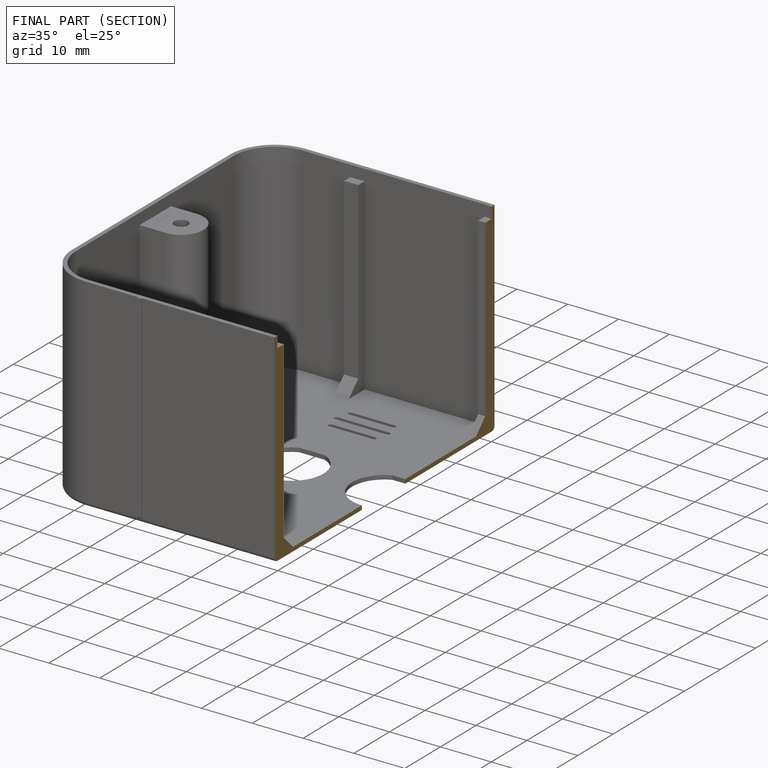
[diagram: finished part — half-section view (interior)]
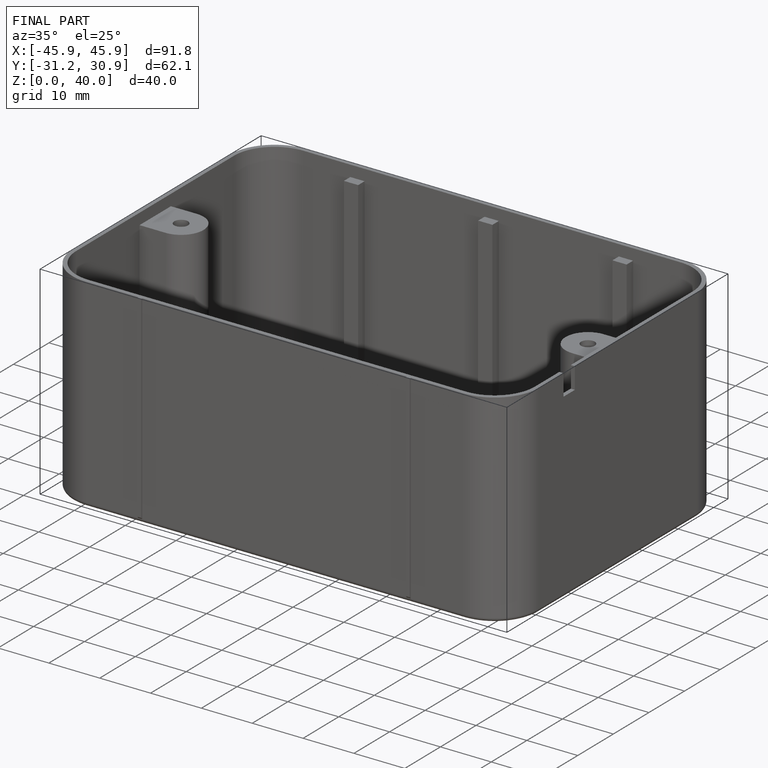
[diagram: finished part — iso view with bounding-box wireframe]
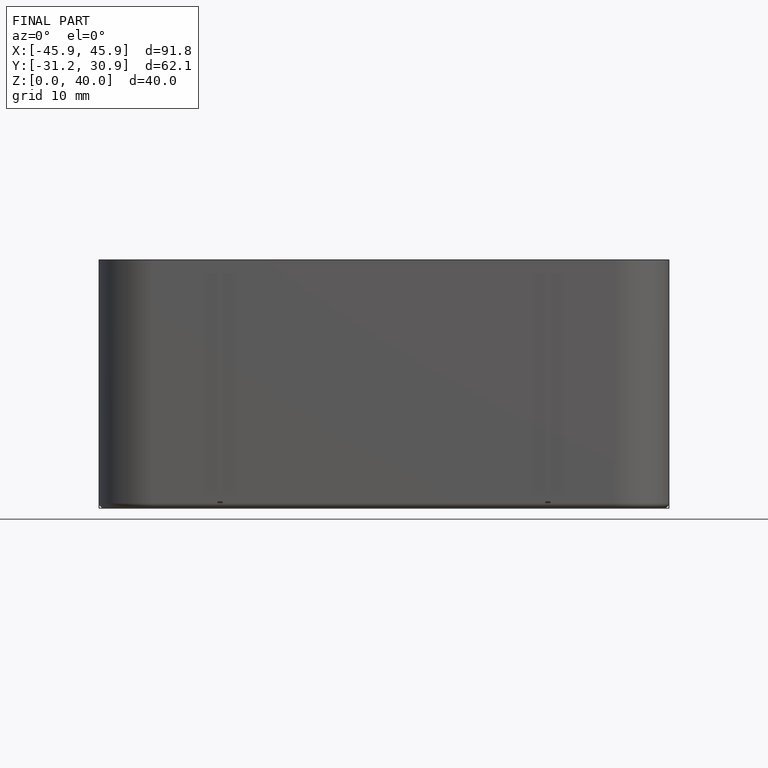
[diagram: finished part — front view with bounding-box wireframe]
